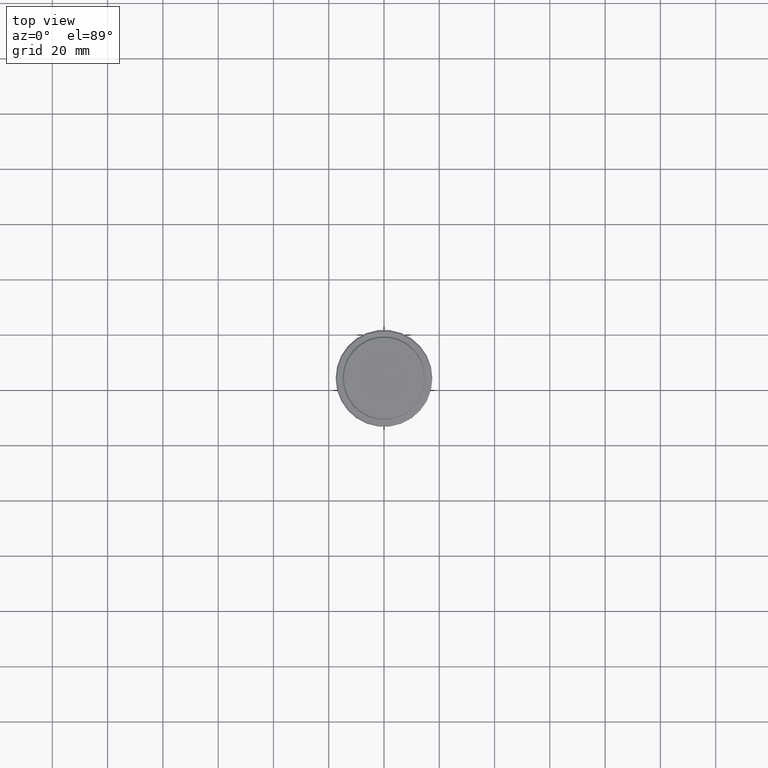
[diagram: clean part render]
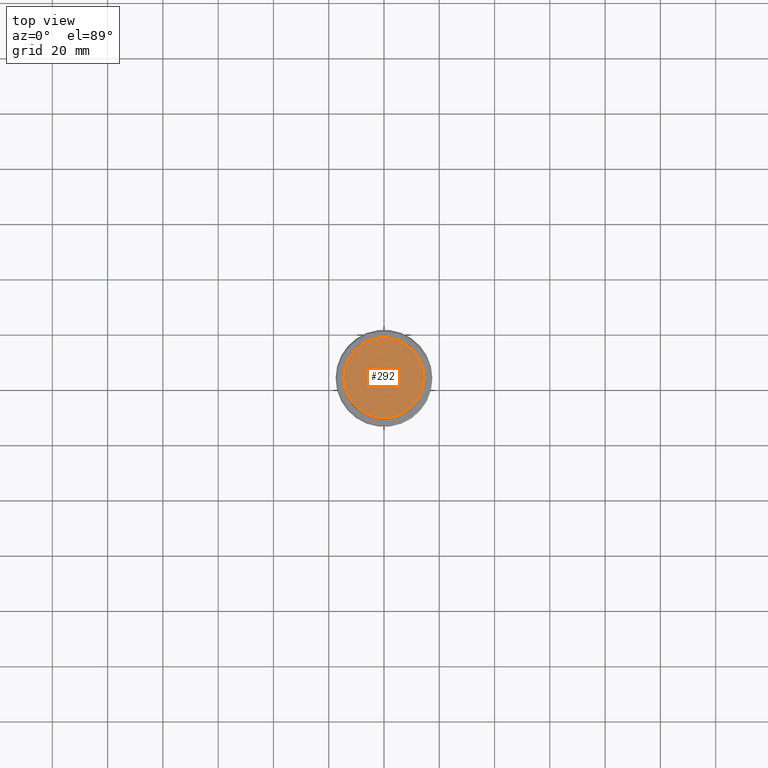
[diagram: same view with one face highlighted and labeled with its STEP entity id]
A machine part, top view. The second image highlights one B-rep face of the part: STEP entity #292.
In plain terms, the highlighted planar face has unit normal (0, -0, 1).
Its self-contained STEP definition (entity closure, byte-faithful):
#91 = DIRECTION ( 'NONE',  ( -0.000000000000000000, -0.000000000000000000, 1.000000000000000000 ) ) ;
#103 = FACE_OUTER_BOUND ( 'NONE', #946, .T. ) ;
#156 = ORIENTED_EDGE ( 'NONE', *, *, #1160, .T. ) ;
#178 = AXIS2_PLACEMENT_3D ( 'NONE', #301, #91, #200 ) ;
#189 = CARTESIAN_POINT ( 'NONE',  ( 14.49999999999998401, 1.806354028742345013E-15, 0.000000000000000000 ) ) ;
#200 = DIRECTION ( 'NONE',  ( 1.000000000000000000, 0.000000000000000000, 0.000000000000000000 ) ) ;
#214 = PLANE ( 'NONE',  #1325 ) ;
#264 = DIRECTION ( 'NONE',  ( 1.000000000000000000, 0.000000000000000000, 0.000000000000000000 ) ) ;
#270 = AXIS2_PLACEMENT_3D ( 'NONE', #419, #844, #935 ) ;
#271 = CARTESIAN_POINT ( 'NONE',  ( -14.49999999999998401, 0.000000000000000000, 0.000000000000000000 ) ) ;
#286 = CARTESIAN_POINT ( 'NONE',  ( 0.000000000000000000, 0.000000000000000000, 0.000000000000000000 ) ) ;
#292 = ADVANCED_FACE ( 'NONE', ( #103 ), #214, .T. ) ;
#301 = CARTESIAN_POINT ( 'NONE',  ( 0.000000000000000000, 0.000000000000000000, 0.000000000000000000 ) ) ;
#419 = CARTESIAN_POINT ( 'NONE',  ( 0.000000000000000000, 0.000000000000000000, 0.000000000000000000 ) ) ;
#556 = VERTEX_POINT ( 'NONE', #271 ) ;
#747 = CIRCLE ( 'NONE', #178, 14.49999999999998401 ) ;
#823 = DIRECTION ( 'NONE',  ( 0.000000000000000000, -0.000000000000000000, 1.000000000000000000 ) ) ;
#844 = DIRECTION ( 'NONE',  ( -0.000000000000000000, -0.000000000000000000, 1.000000000000000000 ) ) ;
#935 = DIRECTION ( 'NONE',  ( 1.000000000000000000, 0.000000000000000000, 0.000000000000000000 ) ) ;
#946 = EDGE_LOOP ( 'NONE', ( #156, #1265 ) ) ;
#1009 = CIRCLE ( 'NONE', #270, 14.49999999999998401 ) ;
#1105 = VERTEX_POINT ( 'NONE', #189 ) ;
#1141 = EDGE_CURVE ( 'NONE', #1105, #556, #747, .T. ) ;
#1160 = EDGE_CURVE ( 'NONE', #556, #1105, #1009, .T. ) ;
#1265 = ORIENTED_EDGE ( 'NONE', *, *, #1141, .T. ) ;
#1325 = AXIS2_PLACEMENT_3D ( 'NONE', #286, #823, #264 ) ;